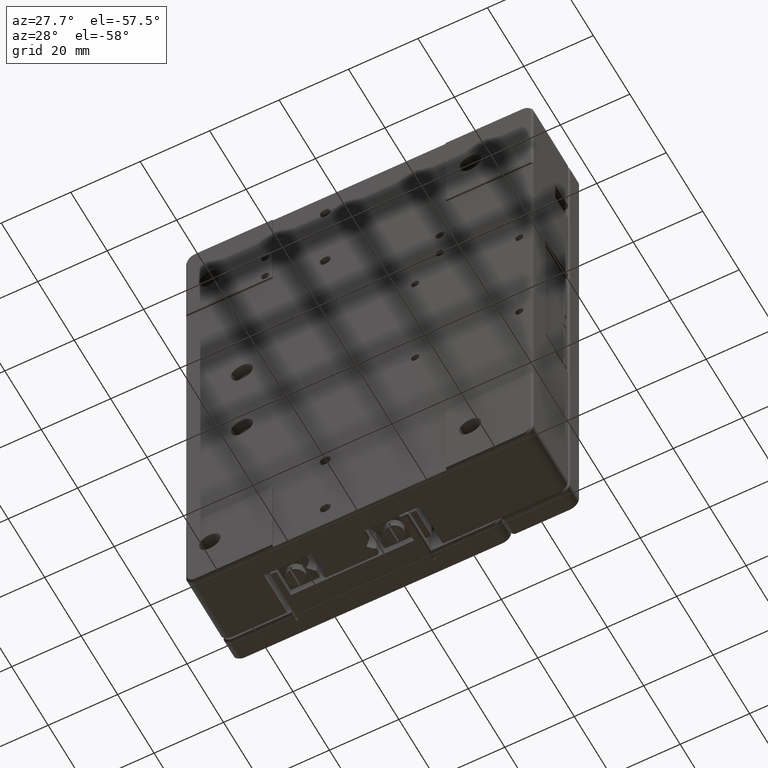
[diagram: clean part render]
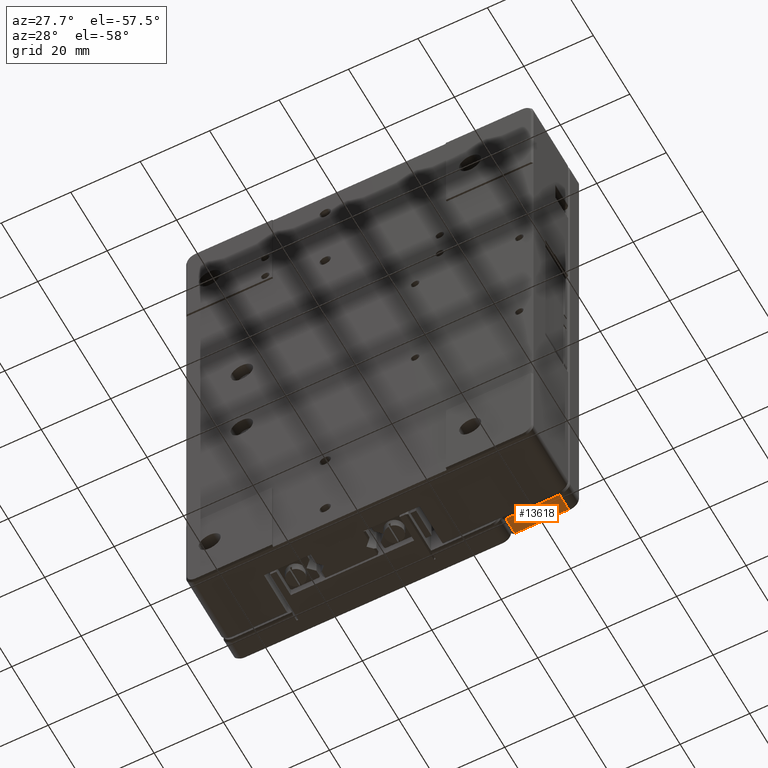
[diagram: same view with one face highlighted and labeled with its STEP entity id]
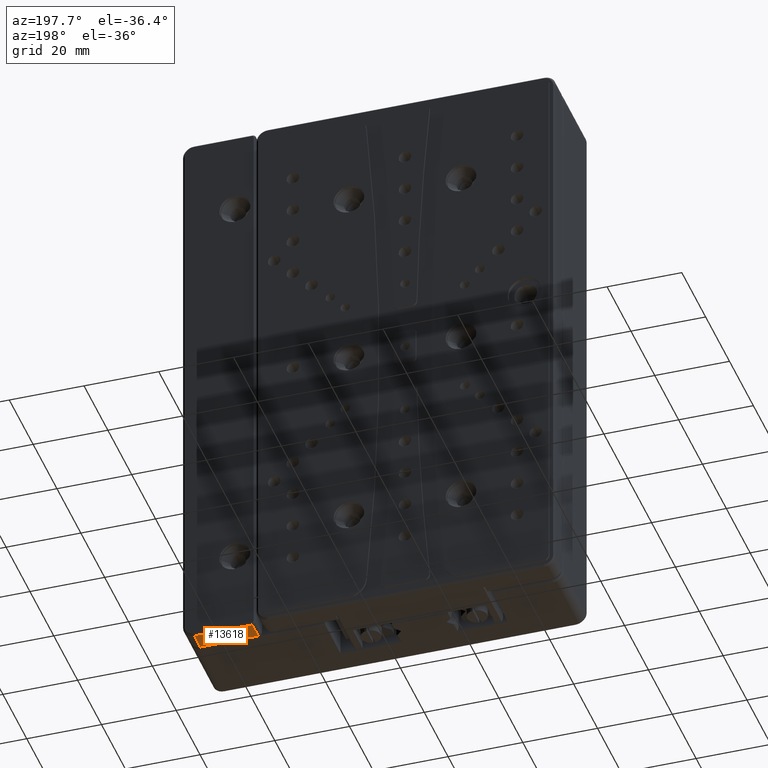
[diagram: same view with one face highlighted and labeled with its STEP entity id]
A machine part, auxiliary view. The second image highlights one B-rep face of the part: STEP entity #13618.
A second angle (auxiliary view) of the same face is appended — the face is thin or edge-on in the first view.
In plain terms, the highlighted planar face has unit normal (0, 0, -1).
Its self-contained STEP definition (entity closure, byte-faithful):
#393 = DIRECTION ( 'NONE',  ( 0.000000000000000000, -0.9999999999998264721, 5.891092471980156374E-07 ) ) ;
#2951 = EDGE_CURVE ( 'NONE', #45391, #35628, #14188, .T. ) ;
#3731 = ORIENTED_EDGE ( 'NONE', *, *, #39222, .F. ) ;
#4281 = CARTESIAN_POINT ( 'NONE',  ( 46.99999999719200616, 5.500002949539999797, -77.50000294113000621 ) ) ;
#4916 = VECTOR ( 'NONE', #30337, 1000.000000000000000 ) ;
#13618 = ADVANCED_FACE ( 'NONE', ( #15747 ), #29578, .T. ) ;
#14188 = LINE ( 'NONE', #4281, #22334 ) ;
#14738 = CARTESIAN_POINT ( 'NONE',  ( 46.99999999719200616, 0.4999999955789000139, -77.49999999558001207 ) ) ;
#15501 = VERTEX_POINT ( 'NONE', #42807 ) ;
#15607 = LINE ( 'NONE', #36996, #4916 ) ;
#15635 = CARTESIAN_POINT ( 'NONE',  ( 31.50000000500017450, 3.833321861877333259, -77.50000000000000000 ) ) ;
#15747 = FACE_OUTER_BOUND ( 'NONE', #30170, .T. ) ;
#17289 = CARTESIAN_POINT ( 'NONE',  ( 41.83333333497122197, 5.500000003155416373, -77.49999999684457919 ) ) ;
#20514 = CARTESIAN_POINT ( 'NONE',  ( 47.00000000000000000, 5.499972699975000268, -77.50000000000000000 ) ) ;
#22334 = VECTOR ( 'NONE', #393, 1000.000000000000114 ) ;
#22548 = CARTESIAN_POINT ( 'NONE',  ( 31.50000000000000000, 0.5000000000000000000, -77.50000000000000000 ) ) ;
#22832 = B_SPLINE_CURVE_WITH_KNOTS ( 'NONE', 3,
 ( #43915, #15635, #44140, #22548 ),
 .UNSPECIFIED., .F., .F.,
 ( 4, 4 ),
 ( 0.000000000000000000, 1.000000000000000000 ),
 .UNSPECIFIED. ) ;
#24452 = CARTESIAN_POINT ( 'NONE',  ( 31.50000000500000041, 5.499982792815999666, -77.49998279070000251 ) ) ;
#28488 = ORIENTED_EDGE ( 'NONE', *, *, #44702, .F. ) ;
#29578 = PLANE ( 'NONE',  #30723 ) ;
#29805 = CARTESIAN_POINT ( 'NONE',  ( 50.00000000000000000, 0.000000000000000000, -77.50000000000000000 ) ) ;
#30170 = EDGE_LOOP ( 'NONE', ( #28488, #32100, #31544, #3731 ) ) ;
#30337 = DIRECTION ( 'NONE',  ( 1.000000000000000000, -2.840946404289000119E-10, 2.840942393161000101E-10 ) ) ;
#30723 = AXIS2_PLACEMENT_3D ( 'NONE', #29805, #42904, #43583 ) ;
#31544 = ORIENTED_EDGE ( 'NONE', *, *, #2951, .T. ) ;
#32083 = EDGE_CURVE ( 'NONE', #45391, #15501, #33095, .T. ) ;
#32100 = ORIENTED_EDGE ( 'NONE', *, *, #32083, .F. ) ;
#32525 = CARTESIAN_POINT ( 'NONE',  ( 47.00000000000000000, 5.499972699975000268, -77.50000000000000000 ) ) ;
#32947 = VERTEX_POINT ( 'NONE', #44597 ) ;
#33095 = B_SPLINE_CURVE_WITH_KNOTS ( 'NONE', 3,
 ( #20514, #17289, #45347, #24452 ),
 .UNSPECIFIED., .F., .F.,
 ( 4, 4 ),
 ( 0.000000000000000000, 1.000000000000000000 ),
 .UNSPECIFIED. ) ;
#35628 = VERTEX_POINT ( 'NONE', #14738 ) ;
#36996 = CARTESIAN_POINT ( 'NONE',  ( 31.50000000500000041, 0.4999999999824000230, -77.49999999998000533 ) ) ;
#39222 = EDGE_CURVE ( 'NONE', #32947, #35628, #15607, .T. ) ;
#42807 = CARTESIAN_POINT ( 'NONE',  ( 31.50000000500000041, 5.499982792815999666, -77.49998279070000251 ) ) ;
#42904 = DIRECTION ( 'NONE',  ( 0.000000000000000000, 0.000000000000000000, -1.000000000000000000 ) ) ;
#43583 = DIRECTION ( 'NONE',  ( 0.000000000000000000, -1.000000000000000000, 0.000000000000000000 ) ) ;
#43915 = CARTESIAN_POINT ( 'NONE',  ( 31.50000000500000041, 5.499982792815999666, -77.49998279070000251 ) ) ;
#44140 = CARTESIAN_POINT ( 'NONE',  ( 31.50000000500025621, 2.166660930938666407, -77.50000000000000000 ) ) ;
#44597 = CARTESIAN_POINT ( 'NONE',  ( 31.50000000000000000, 0.5000000000000000000, -77.50000000000000000 ) ) ;
#44702 = EDGE_CURVE ( 'NONE', #15501, #32947, #22832, .T. ) ;
#45347 = CARTESIAN_POINT ( 'NONE',  ( 36.66666666998561652, 5.500000002105836394, -77.49999999789416449 ) ) ;
#45391 = VERTEX_POINT ( 'NONE', #32525 ) ;